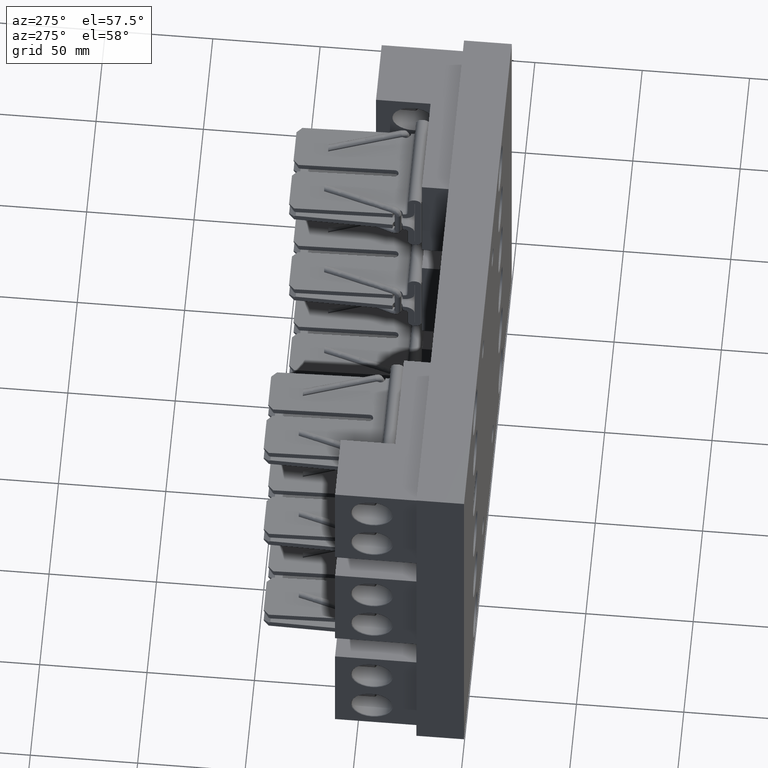
[diagram: clean part render]
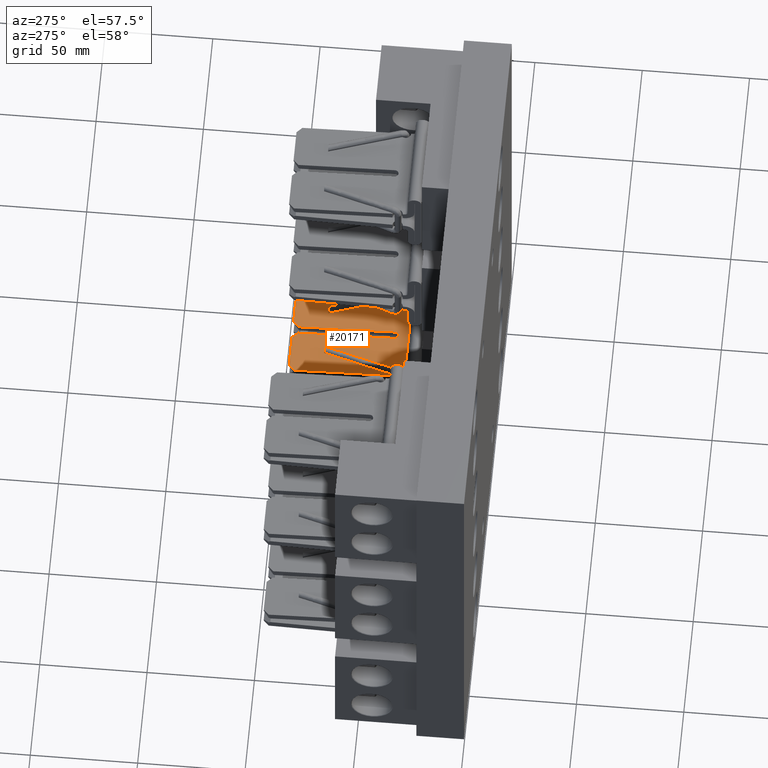
[diagram: same view with one face highlighted and labeled with its STEP entity id]
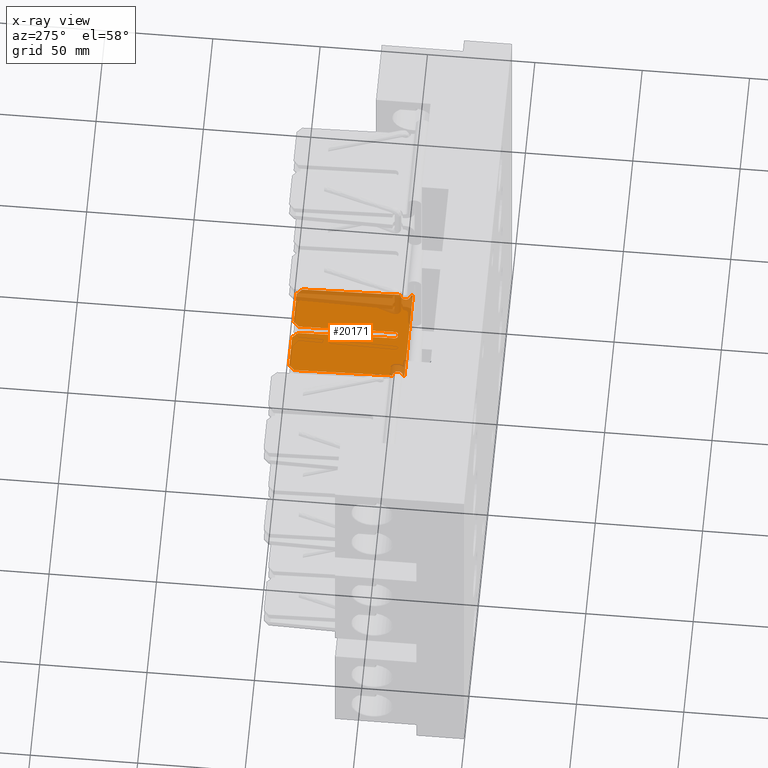
[diagram: x-ray of the same camera — body ghosted, the highlighted face saturated]
A machine part, auxiliary view. The second image highlights one B-rep face of the part: STEP entity #20171.
The next image is the same camera in x-ray: the body ghosted, the highlighted face saturated — about 20% of this face is hidden behind the body in this view.
In plain terms, the highlighted planar face has unit normal (-0, -0.0353, -0.9994).
Its self-contained STEP definition (entity closure, byte-faithful):
#793 = ORIENTED_EDGE ( 'NONE', *, *, #28817, .T. ) ;
#826 = VERTEX_POINT ( 'NONE', #8206 ) ;
#1485 = DIRECTION ( 'NONE',  ( -0.7068865159459646300, 0.7068865159459665200, -0.02495810785192242500 ) ) ;
#1845 = EDGE_CURVE ( 'NONE', #29896, #826, #35082, .T. ) ;
#2292 = ORIENTED_EDGE ( 'NONE', *, *, #17175, .F. ) ;
#4228 = VERTEX_POINT ( 'NONE', #16650 ) ;
#5008 = VERTEX_POINT ( 'NONE', #12199 ) ;
#5736 = PLANE ( 'NONE',  #35774 ) ;
#6180 = CARTESIAN_POINT ( 'NONE',  ( 1.775132654243585500, 3.702132654243586200, -2.564152424013092200 ) ) ;
#6293 = LINE ( 'NONE', #37665, #16862 ) ;
#7509 = ORIENTED_EDGE ( 'NONE', *, *, #23322, .T. ) ;
#7865 = VECTOR ( 'NONE', #21779, 39.37007874015748900 ) ;
#8206 = CARTESIAN_POINT ( 'NONE',  ( 1.783000000000000600, 1.717999999999999500, -2.494098468165789000 ) ) ;
#8731 = DIRECTION ( 'NONE',  ( -0.7068865159459646300, 0.7068865159459666300, -0.02495810785192242900 ) ) ;
#9614 = CARTESIAN_POINT ( 'NONE',  ( 3.533000000000000400, 1.905999999999999900, -2.500736201621324800 ) ) ;
#9673 = CARTESIAN_POINT ( 'NONE',  ( 3.344999999999999800, 1.906000000000000100, -2.500736201621324800 ) ) ;
#9727 = CARTESIAN_POINT ( 'NONE',  ( 2.727000000000000300, 1.940999999999999800, -2.501971949871026000 ) ) ;
#10513 = CARTESIAN_POINT ( 'NONE',  ( 3.533000000000000400, 1.685777038280820800, -2.492960769064513500 ) ) ;
#10602 = CARTESIAN_POINT ( 'NONE',  ( 3.344999999999999800, 1.717999999999999700, -2.494098468165789400 ) ) ;
#10847 = CARTESIAN_POINT ( 'NONE',  ( 3.533000000000000400, 1.717999999999999500, -2.494098468165789400 ) ) ;
#11254 = VERTEX_POINT ( 'NONE', #17683 ) ;
#11561 = LINE ( 'NONE', #26513, #26052 ) ;
#11666 = CARTESIAN_POINT ( 'NONE',  ( 2.489000000000001200, 3.810000000000000100, -2.567960906405045500 ) ) ;
#11701 = VERTEX_POINT ( 'NONE', #11666 ) ;
#11949 = DIRECTION ( 'NONE',  ( -1.264658831045895400E-016, -0.9993772867383173800, 0.03528510665364439900 ) ) ;
#12026 = VECTOR ( 'NONE', #31758, 39.37007874015748100 ) ;
#12157 = CARTESIAN_POINT ( 'NONE',  ( 2.727000000000000300, 3.810000000000000100, -2.567960906405045500 ) ) ;
#12199 = CARTESIAN_POINT ( 'NONE',  ( 1.783000000000000600, 1.905999999999999900, -2.500736201621324800 ) ) ;
#12450 = CARTESIAN_POINT ( 'NONE',  ( 1.783000000000000600, 3.810000000000000100, -2.567960906405045500 ) ) ;
#13021 = CARTESIAN_POINT ( 'NONE',  ( 1.783000000000000600, 1.717999999999999500, -2.494098468165789000 ) ) ;
#13109 = CARTESIAN_POINT ( 'NONE',  ( 2.727000000000000300, 1.803000000000000400, -2.497099571057920000 ) ) ;
#13156 = CARTESIAN_POINT ( 'NONE',  ( 1.971000000000000500, 1.717999999999999700, -2.494098468165789400 ) ) ;
#13600 = CARTESIAN_POINT ( 'NONE',  ( 1.783000000000000600, 1.905999999999999900, -2.500736201621324800 ) ) ;
#13640 = CARTESIAN_POINT ( 'NONE',  ( 1.971000000000000500, 1.906000000000000100, -2.500736201621324800 ) ) ;
#14976 =( BOUNDED_CURVE ( )  B_SPLINE_CURVE ( 3, ( #13600, #13640, #13156, #13021 ),
 .UNSPECIFIED., .F., .F. ) 
 B_SPLINE_CURVE_WITH_KNOTS ( ( 4, 4 ),
 ( 0.0000000000000000000, 3.141592653589793100 ),
 .UNSPECIFIED. ) 
 CURVE ( )  GEOMETRIC_REPRESENTATION_ITEM ( )  RATIONAL_B_SPLINE_CURVE ( ( 1.000000000000000000, 0.3333333333333333700, 0.3333333333333333700, 1.000000000000000000 ) ) 
 REPRESENTATION_ITEM ( '' )  );
#16001 = ORIENTED_EDGE ( 'NONE', *, *, #36687, .F. ) ;
#16069 = CARTESIAN_POINT ( 'NONE',  ( 2.589000000000000900, 1.940999999999999800, -2.501971949871026000 ) ) ;
#16258 = VECTOR ( 'NONE', #27627, 39.37007874015748100 ) ;
#16273 = DIRECTION ( 'NONE',  ( -0.7068865159459675200, -0.7068865159459636300, 0.02495810785192235600 ) ) ;
#16362 = LINE ( 'NONE', #29922, #17958 ) ;
#16436 = ORIENTED_EDGE ( 'NONE', *, *, #17168, .T. ) ;
#16650 = CARTESIAN_POINT ( 'NONE',  ( 3.433000000000000300, 3.810000000000000100, -2.567960906405045500 ) ) ;
#16840 = CARTESIAN_POINT ( 'NONE',  ( 3.533000000000000400, 3.709999999999999500, -2.564430197120186200 ) ) ;
#16862 = VECTOR ( 'NONE', #37098, 39.37007874015748100 ) ;
#16988 = FACE_OUTER_BOUND ( 'NONE', #28850, .T. ) ;
#17168 = EDGE_CURVE ( 'NONE', #37785, #4228, #16362, .T. ) ;
#17175 = EDGE_CURVE ( 'NONE', #32228, #4228, #17733, .T. ) ;
#17683 = CARTESIAN_POINT ( 'NONE',  ( 3.533000000000000400, 1.717999999999999500, -2.494098468165789400 ) ) ;
#17733 = LINE ( 'NONE', #29229, #20919 ) ;
#17958 = VECTOR ( 'NONE', #8731, 39.37007874015748100 ) ;
#18592 =( BOUNDED_CURVE ( )  B_SPLINE_CURVE ( 3, ( #10847, #10602, #9673, #9614 ),
 .UNSPECIFIED., .F., .T. ) 
 B_SPLINE_CURVE_WITH_KNOTS ( ( 4, 4 ),
 ( 3.141592653589793100, 6.283185307179586200 ),
 .UNSPECIFIED. ) 
 CURVE ( )  GEOMETRIC_REPRESENTATION_ITEM ( )  RATIONAL_B_SPLINE_CURVE ( ( 1.000000000000000000, 0.3333333333333333700, 0.3333333333333333700, 1.000000000000000000 ) ) 
 REPRESENTATION_ITEM ( '' )  );
#20171 = ADVANCED_FACE ( 'NONE', ( #16988 ), #5736, .F. ) ;
#20203 = EDGE_CURVE ( 'NONE', #37636, #37785, #36249, .T. ) ;
#20462 = CARTESIAN_POINT ( 'NONE',  ( 2.727000000000000300, 1.940999999999999800, -2.501971949871026000 ) ) ;
#20919 = VECTOR ( 'NONE', #29081, 39.37007874015748100 ) ;
#21203 = LINE ( 'NONE', #23223, #16258 ) ;
#21349 = CARTESIAN_POINT ( 'NONE',  ( 2.589000000000000900, 1.940999999999999800, -2.501971949871026000 ) ) ;
#21779 = DIRECTION ( 'NONE',  ( -0.7068865159459675200, -0.7068865159459636300, 0.02495810785192235900 ) ) ;
#21965 = VERTEX_POINT ( 'NONE', #32997 ) ;
#22779 = ORIENTED_EDGE ( 'NONE', *, *, #36065, .T. ) ;
#23087 = CARTESIAN_POINT ( 'NONE',  ( 1.783000000000000600, 3.810000000000000100, -2.567960906405045500 ) ) ;
#23223 = CARTESIAN_POINT ( 'NONE',  ( 2.589000000000000000, 3.810000000000000100, -2.567960906405045500 ) ) ;
#23322 = EDGE_CURVE ( 'NONE', #32228, #25763, #11561, .T. ) ;
#23466 = ORIENTED_EDGE ( 'NONE', *, *, #35279, .T. ) ;
#23494 =( BOUNDED_CURVE ( )  B_SPLINE_CURVE ( 3, ( #9727, #13109, #37774, #21349 ),
 .UNSPECIFIED., .F., .F. ) 
 B_SPLINE_CURVE_WITH_KNOTS ( ( 4, 4 ),
 ( 1.570796326794896600, 4.712388980384689700 ),
 .UNSPECIFIED. ) 
 CURVE ( )  GEOMETRIC_REPRESENTATION_ITEM ( )  RATIONAL_B_SPLINE_CURVE ( ( 1.000000000000000000, 0.3333333333333333700, 0.3333333333333333700, 1.000000000000000000 ) ) 
 REPRESENTATION_ITEM ( '' )  );
#24184 = LINE ( 'NONE', #32113, #12026 ) ;
#24622 = DIRECTION ( 'NONE',  ( -2.267896479054302500E-017, -0.03528510665364439200, -0.9993772867383173800 ) ) ;
#24765 = CARTESIAN_POINT ( 'NONE',  ( 3.533000000000000400, 3.810000000000000100, -2.567960906405045500 ) ) ;
#25276 = LINE ( 'NONE', #35881, #26670 ) ;
#25763 = VERTEX_POINT ( 'NONE', #34192 ) ;
#25863 = EDGE_CURVE ( 'NONE', #29896, #32004, #24184, .T. ) ;
#26052 = VECTOR ( 'NONE', #16273, 39.37007874015748900 ) ;
#26513 = CARTESIAN_POINT ( 'NONE',  ( 2.717042012079955400, 3.700042012079956000, -2.564078609516108100 ) ) ;
#26670 = VECTOR ( 'NONE', #35603, 39.37007874015748900 ) ;
#26742 = ORIENTED_EDGE ( 'NONE', *, *, #35773, .T. ) ;
#26808 = LINE ( 'NONE', #42448, #37842 ) ;
#27076 = LINE ( 'NONE', #6180, #7865 ) ;
#27627 = DIRECTION ( 'NONE',  ( -1.200361385768647800E-016, 0.9993772867383173800, -0.03528510665364439900 ) ) ;
#28105 = VERTEX_POINT ( 'NONE', #37275 ) ;
#28288 = VECTOR ( 'NONE', #42464, 39.37007874015748900 ) ;
#28473 = DIRECTION ( 'NONE',  ( -3.214872263862384400E-018, -0.9993772867383173800, 0.03528510665364439200 ) ) ;
#28686 = EDGE_CURVE ( 'NONE', #11254, #37636, #18592, .T. ) ;
#28817 = EDGE_CURVE ( 'NONE', #32004, #11254, #42465, .T. ) ;
#28850 = EDGE_LOOP ( 'NONE', ( #33275, #16436, #2292, #7509, #37848, #26742, #32466, #38597, #16001, #22779, #31385, #23466, #35668, #32062, #793, #32017 ) ) ;
#29081 = DIRECTION ( 'NONE',  ( 1.000000000000000000, -4.013100011697571400E-018, -2.255140518769849200E-017 ) ) ;
#29229 = CARTESIAN_POINT ( 'NONE',  ( 1.783000000000000600, 3.810000000000000100, -2.567960906405045500 ) ) ;
#29896 = VERTEX_POINT ( 'NONE', #38145 ) ;
#29922 = CARTESIAN_POINT ( 'NONE',  ( 3.433000000000000300, 3.810000000000000100, -2.567960906405045500 ) ) ;
#31385 = ORIENTED_EDGE ( 'NONE', *, *, #40990, .F. ) ;
#31478 = CARTESIAN_POINT ( 'NONE',  ( 2.827000000000001300, 3.810000000000000100, -2.567960906405045500 ) ) ;
#31758 = DIRECTION ( 'NONE',  ( 1.000000000000000000, -4.013100011697571400E-018, -2.255140518769849200E-017 ) ) ;
#32004 = VERTEX_POINT ( 'NONE', #10513 ) ;
#32017 = ORIENTED_EDGE ( 'NONE', *, *, #28686, .T. ) ;
#32062 = ORIENTED_EDGE ( 'NONE', *, *, #25863, .T. ) ;
#32113 = CARTESIAN_POINT ( 'NONE',  ( 1.783000000000000600, 1.685777038280820800, -2.492960769064513500 ) ) ;
#32228 = VERTEX_POINT ( 'NONE', #31478 ) ;
#32466 = ORIENTED_EDGE ( 'NONE', *, *, #40451, .T. ) ;
#32685 = EDGE_CURVE ( 'NONE', #42708, #11701, #26808, .T. ) ;
#32924 = CARTESIAN_POINT ( 'NONE',  ( 3.533000000000000400, 3.810000000000000100, -2.567960906405045500 ) ) ;
#32997 = CARTESIAN_POINT ( 'NONE',  ( 1.883000000000000700, 3.810000000000000100, -2.567960906405045500 ) ) ;
#33275 = ORIENTED_EDGE ( 'NONE', *, *, #20203, .T. ) ;
#34192 = CARTESIAN_POINT ( 'NONE',  ( 2.727000000000000300, 3.710000000000000400, -2.564430197120186200 ) ) ;
#34479 = VECTOR ( 'NONE', #37654, 39.37007874015748900 ) ;
#35082 = LINE ( 'NONE', #23087, #34479 ) ;
#35279 = EDGE_CURVE ( 'NONE', #5008, #826, #14976, .T. ) ;
#35603 = DIRECTION ( 'NONE',  ( 3.214872263862384400E-018, 0.9993772867383173800, -0.03528510665364439200 ) ) ;
#35668 = ORIENTED_EDGE ( 'NONE', *, *, #1845, .F. ) ;
#35773 = EDGE_CURVE ( 'NONE', #42750, #40212, #23494, .T. ) ;
#35774 = AXIS2_PLACEMENT_3D ( 'NONE', #12450, #24622, #28473 ) ;
#35881 = CARTESIAN_POINT ( 'NONE',  ( 1.783000000000000600, 3.810000000000000100, -2.567960906405045500 ) ) ;
#36065 = EDGE_CURVE ( 'NONE', #21965, #28105, #27076, .T. ) ;
#36249 = LINE ( 'NONE', #32924, #28288 ) ;
#36420 = VECTOR ( 'NONE', #11949, 39.37007874015748100 ) ;
#36687 = EDGE_CURVE ( 'NONE', #21965, #11701, #6293, .T. ) ;
#37096 = VECTOR ( 'NONE', #39439, 39.37007874015748900 ) ;
#37098 = DIRECTION ( 'NONE',  ( 1.000000000000000000, -4.013100011697571400E-018, -2.255140518769849200E-017 ) ) ;
#37275 = CARTESIAN_POINT ( 'NONE',  ( 1.783000000000000600, 3.710000000000000400, -2.564430197120186200 ) ) ;
#37636 = VERTEX_POINT ( 'NONE', #40261 ) ;
#37654 = DIRECTION ( 'NONE',  ( 3.214872263862384400E-018, 0.9993772867383173800, -0.03528510665364439200 ) ) ;
#37665 = CARTESIAN_POINT ( 'NONE',  ( 1.783000000000000600, 3.810000000000000100, -2.567960906405045500 ) ) ;
#37774 = CARTESIAN_POINT ( 'NONE',  ( 2.589000000000000900, 1.803000000000000400, -2.497099571057920000 ) ) ;
#37785 = VERTEX_POINT ( 'NONE', #16840 ) ;
#37842 = VECTOR ( 'NONE', #1485, 39.37007874015748900 ) ;
#37848 = ORIENTED_EDGE ( 'NONE', *, *, #41376, .T. ) ;
#38145 = CARTESIAN_POINT ( 'NONE',  ( 1.783000000000000600, 1.685777038280820800, -2.492960769064513500 ) ) ;
#38519 = LINE ( 'NONE', #12157, #36420 ) ;
#38597 = ORIENTED_EDGE ( 'NONE', *, *, #32685, .T. ) ;
#39439 = DIRECTION ( 'NONE',  ( 3.214872263862384400E-018, 0.9993772867383173800, -0.03528510665364439200 ) ) ;
#40212 = VERTEX_POINT ( 'NONE', #16069 ) ;
#40261 = CARTESIAN_POINT ( 'NONE',  ( 3.533000000000000400, 1.905999999999999900, -2.500736201621324800 ) ) ;
#40451 = EDGE_CURVE ( 'NONE', #40212, #42708, #21203, .T. ) ;
#40839 = CARTESIAN_POINT ( 'NONE',  ( 2.589000000000000000, 3.710000000000000400, -2.564430197120186200 ) ) ;
#40990 = EDGE_CURVE ( 'NONE', #5008, #28105, #25276, .T. ) ;
#41376 = EDGE_CURVE ( 'NONE', #25763, #42750, #38519, .T. ) ;
#42448 = CARTESIAN_POINT ( 'NONE',  ( 2.489000000000001200, 3.810000000000000100, -2.567960906405045500 ) ) ;
#42464 = DIRECTION ( 'NONE',  ( 3.214872263862384400E-018, 0.9993772867383173800, -0.03528510665364439200 ) ) ;
#42465 = LINE ( 'NONE', #24765, #37096 ) ;
#42708 = VERTEX_POINT ( 'NONE', #40839 ) ;
#42750 = VERTEX_POINT ( 'NONE', #20462 ) ;